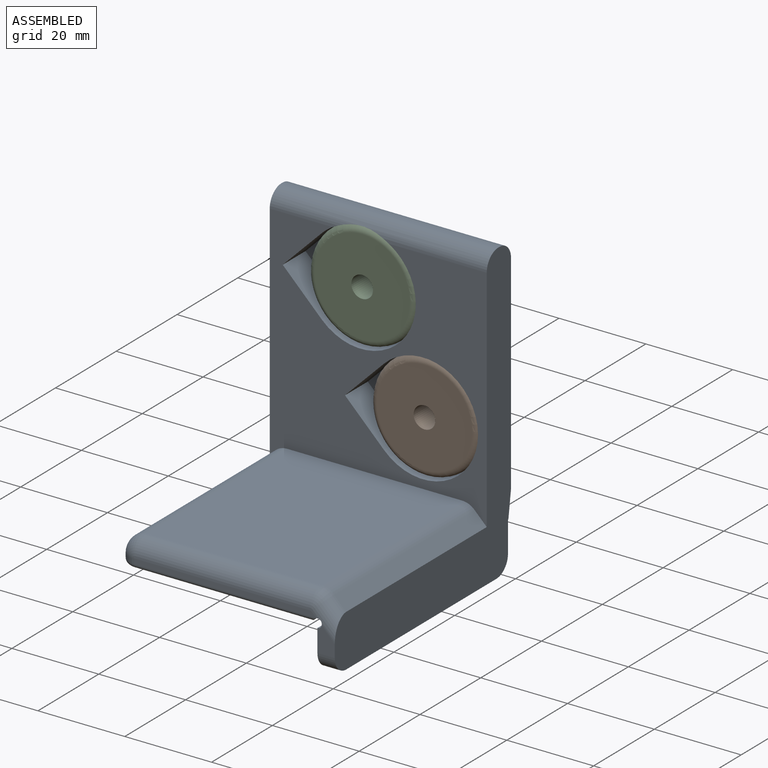
[diagram: assembled view]
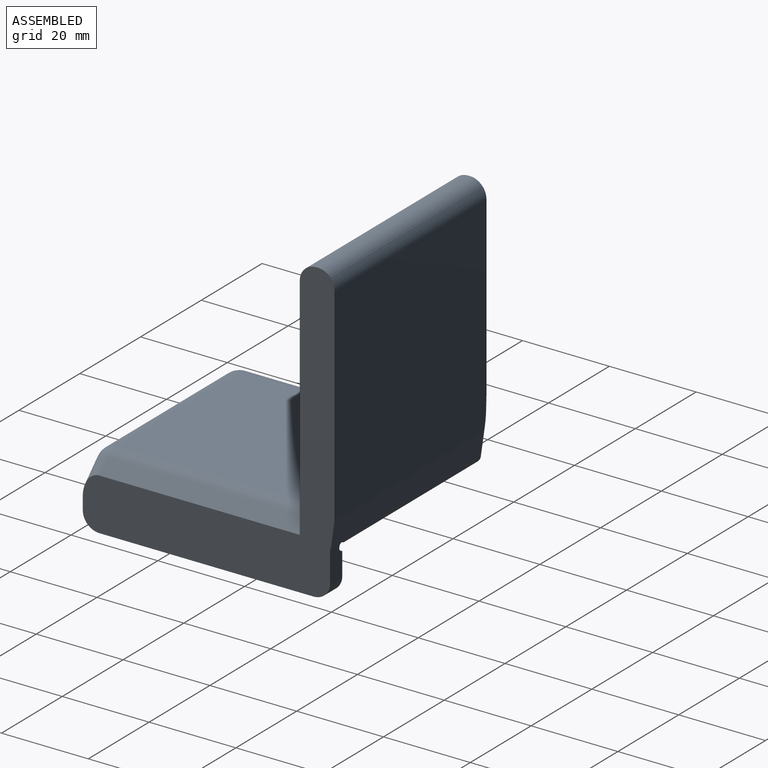
[diagram: assembled view, second angle]
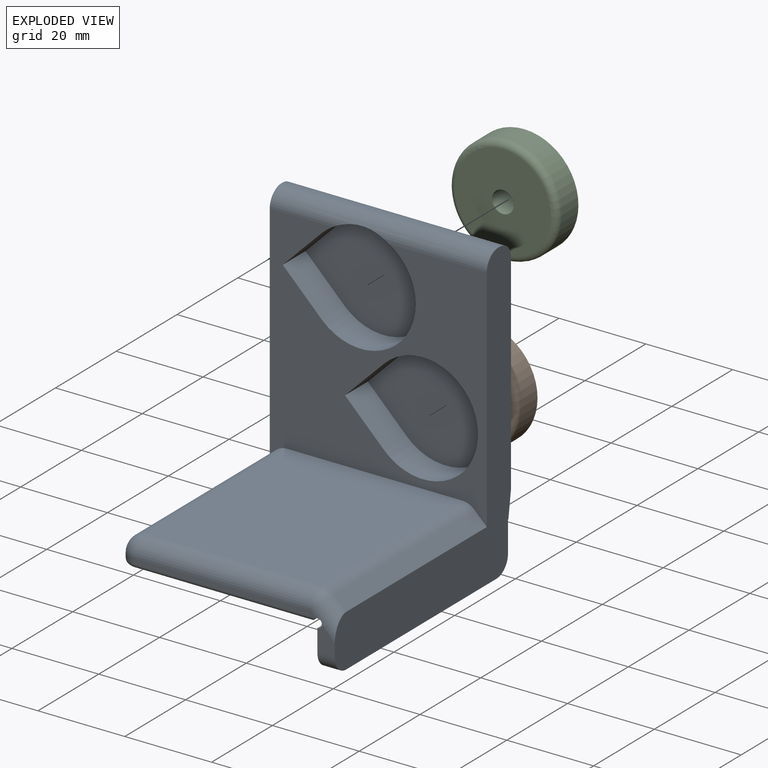
[diagram: exploded view]
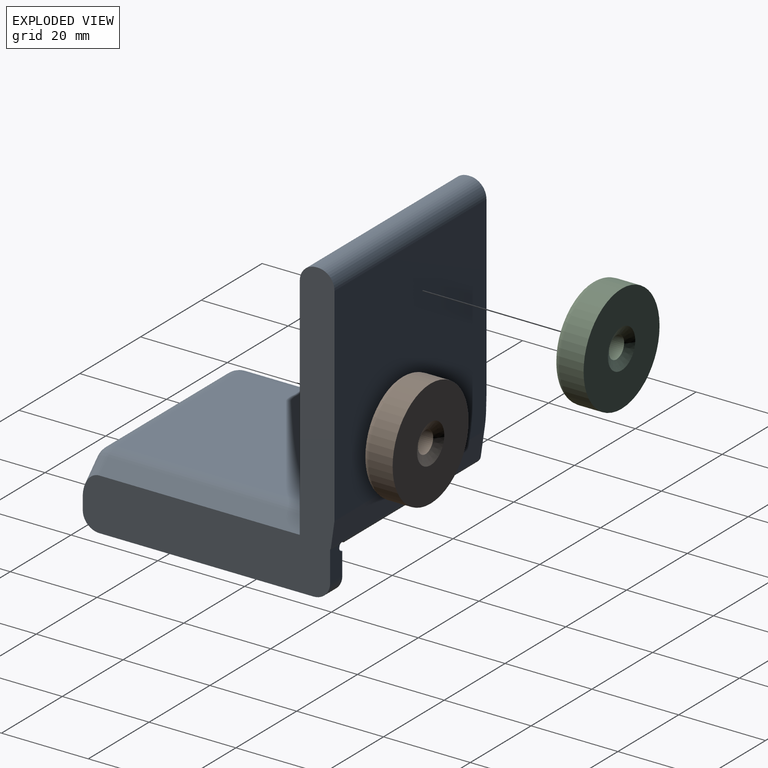
[diagram: exploded view, second angle]
ASSEMBLY  parts=3 mates=4
PART A: 41 faces, bbox 68.7x59.3x53 mm
  f0: plane 5.88x4mm, normal (0,-1,0), area 18.4mm2, adj f1,f5,f7,f26,f34
  f1: plane 68.74x58mm, normal (0,0,-1), area 1119.6mm2, adj f0,f2,f6,f17,f18,f21,f22,f23
  f2: plane 49.4x4mm, normal (-1,0,0), area 197.6mm2, adj f1,f5,f31,f34
  f3: plane 57.74x54.2mm, normal (0,0,1), area 489.7mm2, adj f6,f17,f18,f25,f30,f32,f33,f38
  f4: plane 54.7x43.59mm, normal (-1,0,0), area 2382.4mm2, adj f8,f35,f36,f37,f38
  f5: plane 57x9mm, normal (0,0,1), area 506.8mm2, adj f0,f2,f7,f21,f31,f34
  f6: plane 50x47.94mm, normal (0,1,0), area 2395.7mm2, adj f1,f3,f22,f32,f40
  f7: cylinder r=1mm len=57.11mm, axis (0,-1,0), area 223.9mm2, adj f0,f5,f8,f21,f26,f35,f36
  f8: plane 56.93x0.71mm, normal (-0.71,0,-0.71), area 56.3mm2, adj f4,f7,f35,f36
  f9: plane 41.83x1.2mm, normal (0,-1,0), area 49.5mm2, adj f26,f27,f28,f29,f30,f36
  f10: plane 8.98x8.98mm, normal (-0.71,0,-0.71), area 95.2mm2, adj f11,f15,f18,f19
  f11: cylinder r=12.7mm len=25.4mm, axis (0,1,0), area 445.6mm2, adj f10,f15,f18,f19,f33
  f12: plane 8.98x8.98mm, normal (-0.71,0,-0.71), area 95.2mm2, adj f13,f14,f18,f20
  f13: cylinder r=12.7mm len=25.4mm, axis (0,1,0), area 448.9mm2, adj f12,f14,f18,f20
  f14: plane 8.98x8.98mm, normal (0.71,0,-0.71), area 95.2mm2, adj f12,f13,f18,f20
  f15: plane 8.98x8.98mm, normal (0.71,0,-0.71), area 95.2mm2, adj f10,f11,f18,f19
  f16: plane 46.2x40.34mm, normal (1,0,0), area 1863.9mm2, adj f18,f24,f25,f28
  f17: plane 50x0.4mm, normal (1,0,0), area 20mm2, adj f1,f3,f32,f33
  f18: plane 52.94x50mm, normal (0,-1,0), area 1392.2mm2, adj f1,f3,f10,f11,f12,f13,f14,f15
  f19: plane 30.66x25.4mm, normal (0,-1,0), area 541.3mm2, adj f10,f11,f15
  f20: plane 30.66x25.4mm, normal (0,-1,0), area 541.3mm2, adj f12,f13,f14
  f21: plane 6.95x4mm, normal (0,1,0), area 26.4mm2, adj f1,f5,f7,f31,f35
  f22: plane 49x5.71mm, normal (-0.14,0.99,0), area 282.7mm2, adj f1,f6,f35,f40
  f23: plane 46.2x2.83mm, normal (0.71,0,-0.71), area 184.8mm2, adj f1,f18,f24,f26
  f24: cylinder r=4mm len=46.2mm, axis (0,-1,0), area 145.1mm2, adj f16,f18,f23,f27
  f25: cylinder r=4mm len=46.2mm, axis (0,1,0), area 290.3mm2, adj f3,f16,f18,f29
  f26: cylinder r=3.8mm len=8.2mm, axis (0.71,0,0.71), area 31.4mm2, adj f0,f1,f7,f9,f23,f27,f36
  f27: torus R=0.2mm, axis (0,-1,0), area 12.3mm2, adj f9,f24,f26,f28
  f28: cylinder r=3.8mm len=40.34mm, axis (0,0,-1), area 240.8mm2, adj f9,f16,f27,f29
  f29: torus R=0.2mm, axis (0,-1,0), area 24.6mm2, adj f9,f25,f28,f30
  f30: cylinder r=3.8mm len=3.8mm, axis (1,0,0), area 6mm2, adj f3,f9,f29,f37
  f31: cylinder r=3.8mm len=4mm, axis (0,0,-1), area 23.9mm2, adj f1,f2,f5,f21
  f32: cylinder r=3.8mm len=50mm, axis (0,0,1), area 298.5mm2, adj f1,f3,f6,f17
  f33: cylinder r=3.8mm len=50mm, axis (0,0,-1), area 282.1mm2, adj f1,f3,f11,f17,f18
  f34: cylinder r=3.8mm len=4mm, axis (0,0,1), area 23.9mm2, adj f0,f1,f2,f5
  f35: cylinder r=1.5mm len=49mm, axis (0,0,1), area 96.7mm2, adj f1,f4,f7,f8,f21,f22,f39
  f36: cylinder r=1mm len=41.95mm, axis (0,0,1), area 64.7mm2, adj f4,f7,f8,f9,f26,f37
  f37: torus R=2.8mm, axis (1,0,0), area 8.5mm2, adj f4,f30,f36,f38
  f38: cylinder r=1mm len=51.9mm, axis (0,1,0), area 81.5mm2, adj f3,f4,f37,f39
  f39: torus R=0.5mm, axis (0,0,-1), area 2.6mm2, adj f3,f35,f38,f40
  f40: cylinder r=1mm len=12.78mm, axis (-0.99,-0.14,0), area 13.1mm2, adj f3,f6,f22,f39
PART B: 6 faces, bbox 7x27.1x27.1 mm
  f0: cylinder r=2.5mm len=5.85mm, axis (-1,0,0), area 91.8mm2, adj f3,f5
  f1: cylinder r=12.5mm len=25mm, axis (-1,0,0), area 432mm2, adj f2,f4
  f2: plane 25x25mm, normal (1,0,0), area 427.3mm2, adj f1,f5
  f3: plane 22x22mm, normal (-1,0,0), area 360.5mm2, adj f0,f4
  f4: torus R=11mm, axis (1,0,0), area 177mm2, adj f1,f3
  f5: cone r=2.5mm half-angle=60deg, axis (1,0,0), area 50.8mm2, adj f0,f2
PART C: same geometry as B
PLACE A rot(axis=(0,-1,0),90deg) t=(38.98,0,25.61)mm fixed
PLACE B rot(axis=(0,0,1),90deg) t=(24.28,-7.5,40.31)mm
PLACE C rot(axis=(0,0,1),90deg) t=(9.93,-7.5,63.66)mm
MATE slider B.f1 <-> A.f13  axis (0,-1,0) through (24.28,-7.5,40.31)mm
MATE slider A.f11 <-> C.f0  axis (0,-1,0) through (9.93,-8,63.66)mm
MATE planar A.f13 <-> B.f1  axis (0,-1,0) through (24.28,-0.5,40.31)mm
MATE planar A.f19 <-> C.f1  axis (0,-1,0) through (9.04,-0.5,63.66)mm
